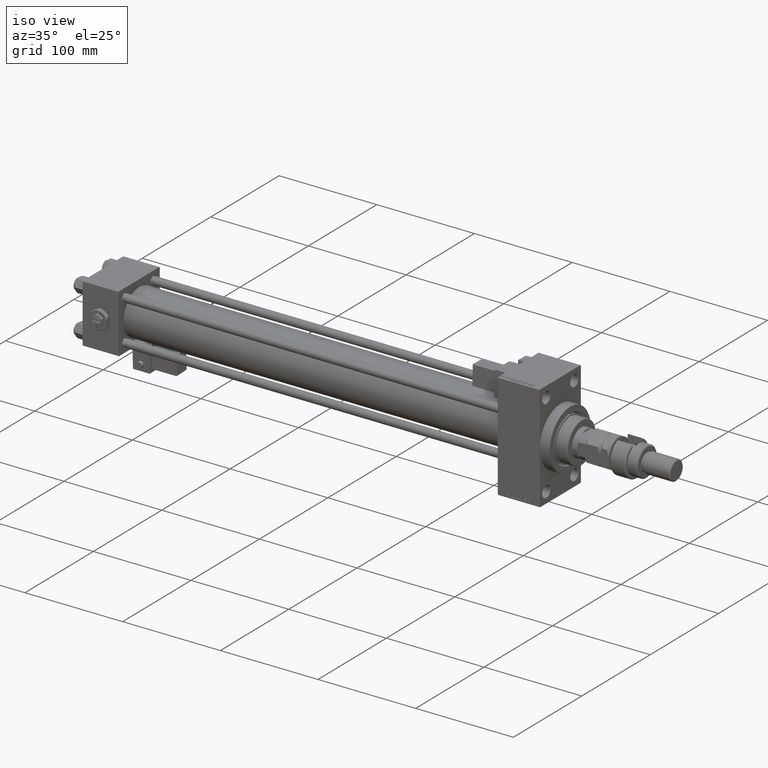
[diagram: clean part render]
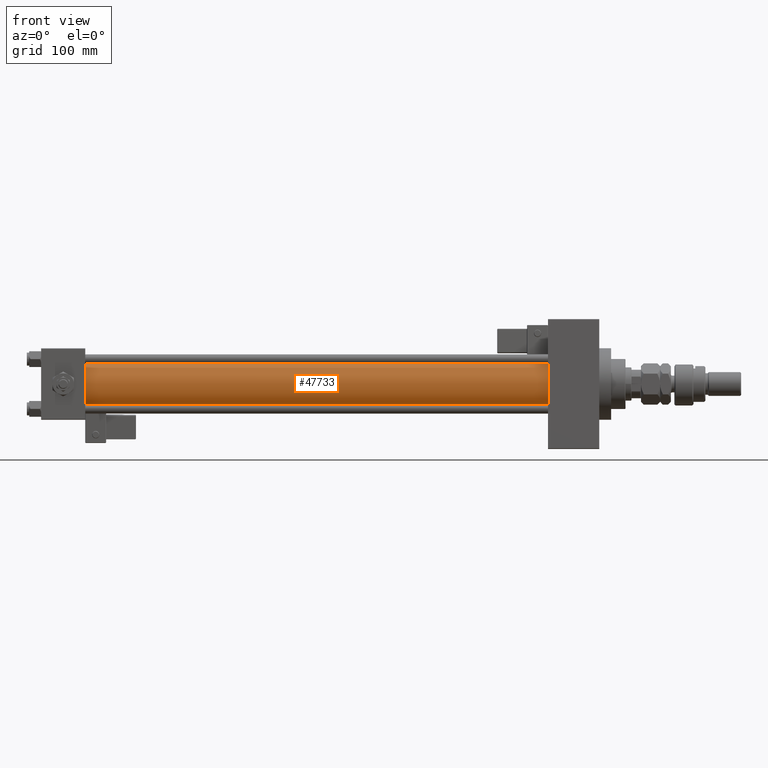
[diagram: tour spotlight — one face highlighted and labeled with its STEP entity id]
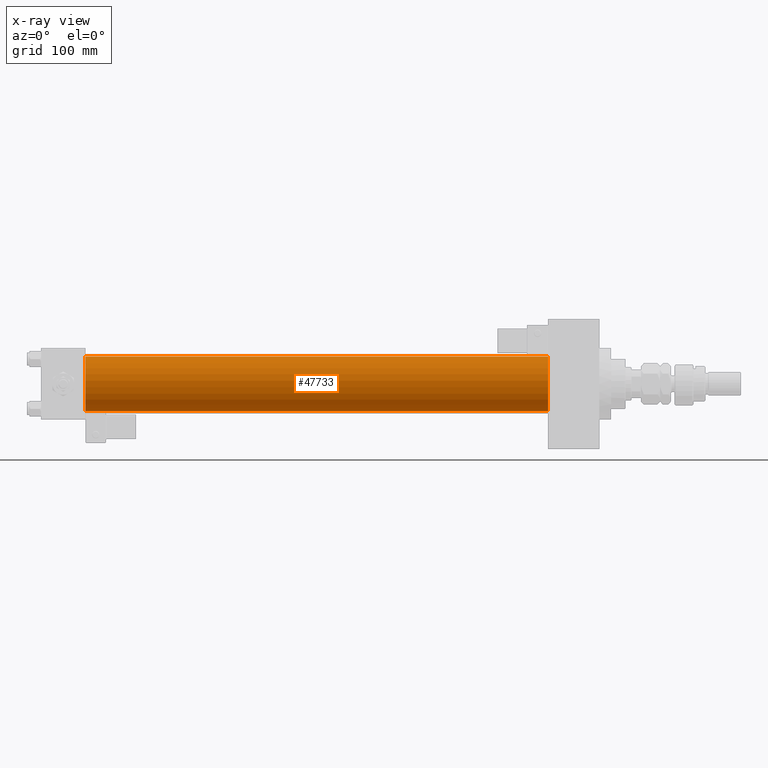
[diagram: x-ray of the same camera — body ghosted, this tour face saturated]
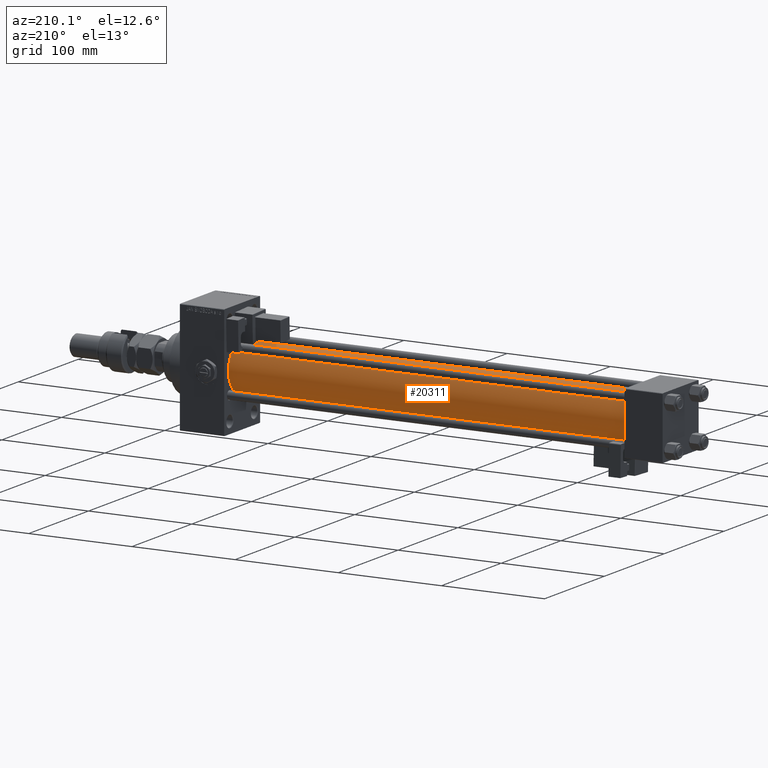
[diagram: tour spotlight — one face highlighted and labeled with its STEP entity id]
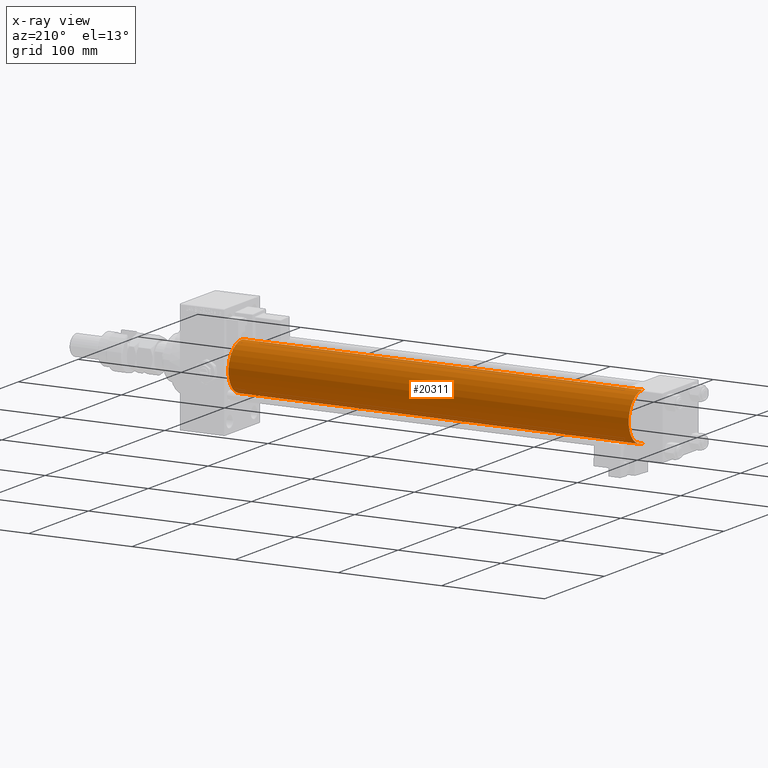
[diagram: x-ray of the same camera — body ghosted, this tour face saturated]
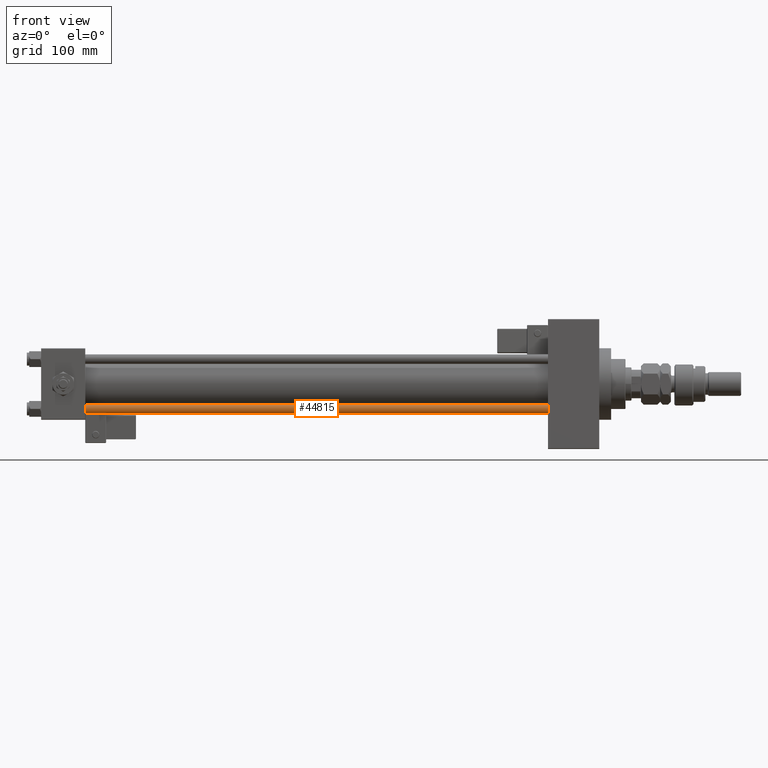
[diagram: tour spotlight — one face highlighted and labeled with its STEP entity id]
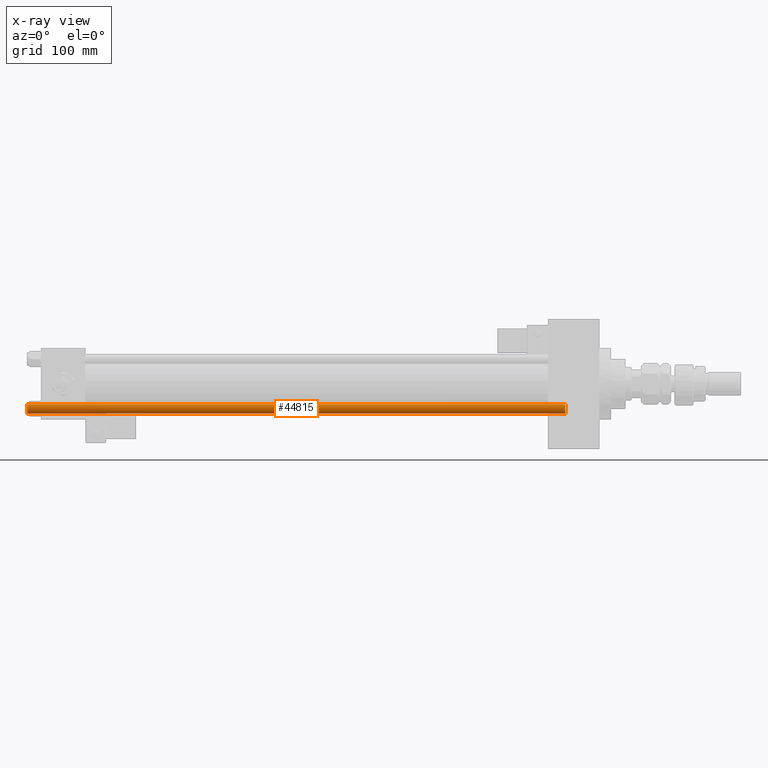
[diagram: x-ray of the same camera — body ghosted, this tour face saturated]
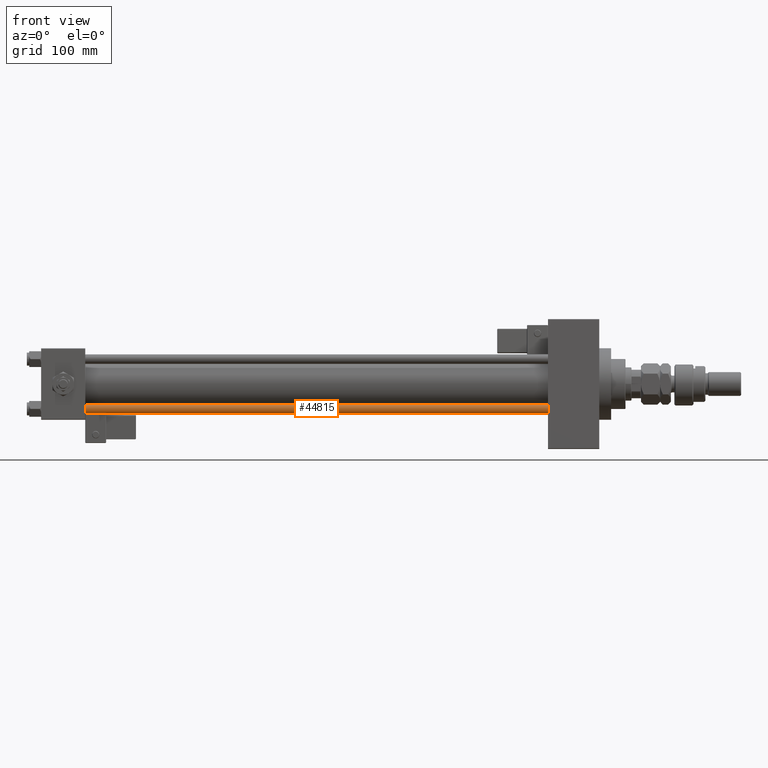
[diagram: tour spotlight — one face highlighted and labeled with its STEP entity id]
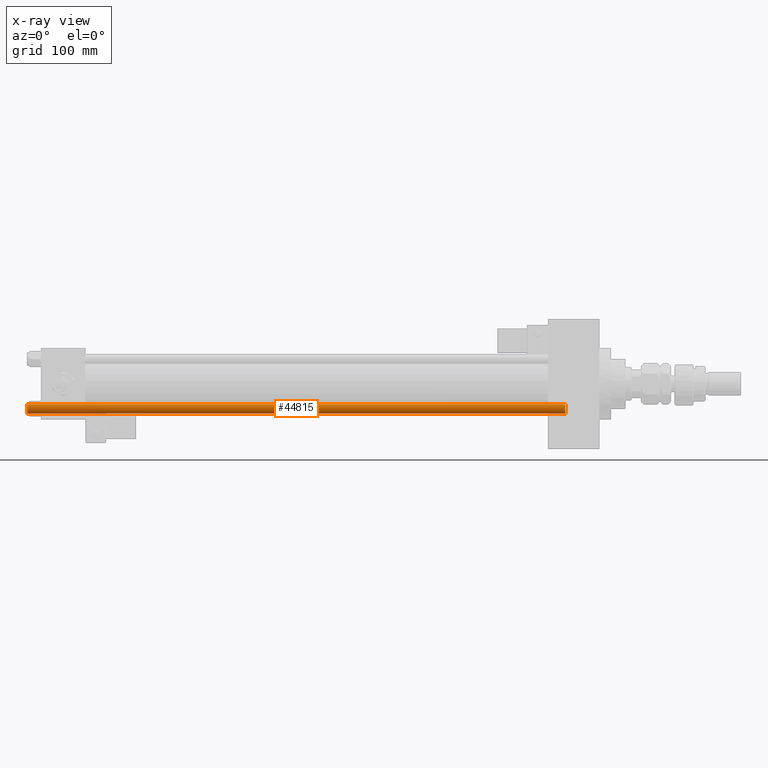
[diagram: x-ray of the same camera — body ghosted, this tour face saturated]
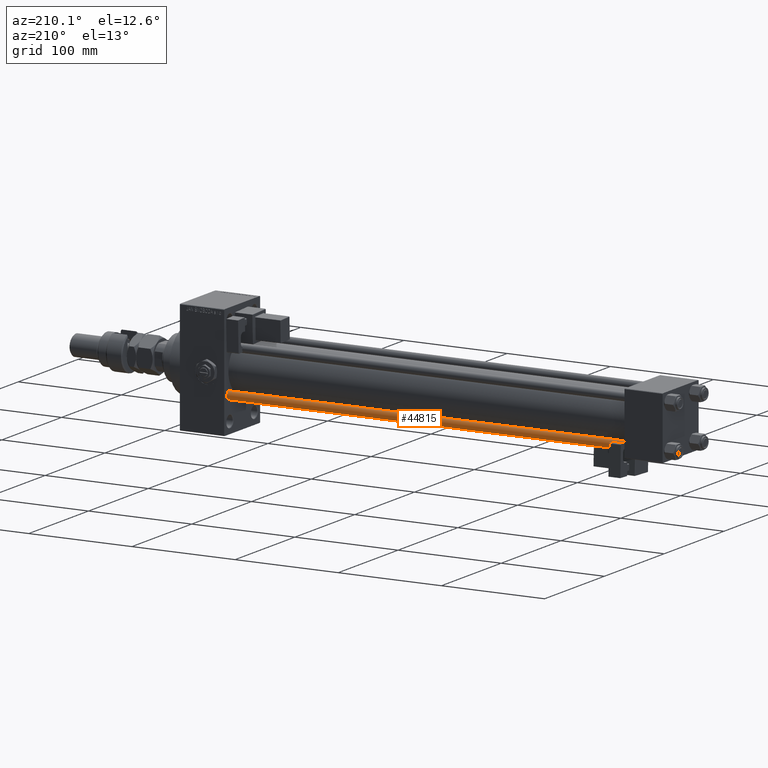
[diagram: tour spotlight — one face highlighted and labeled with its STEP entity id]
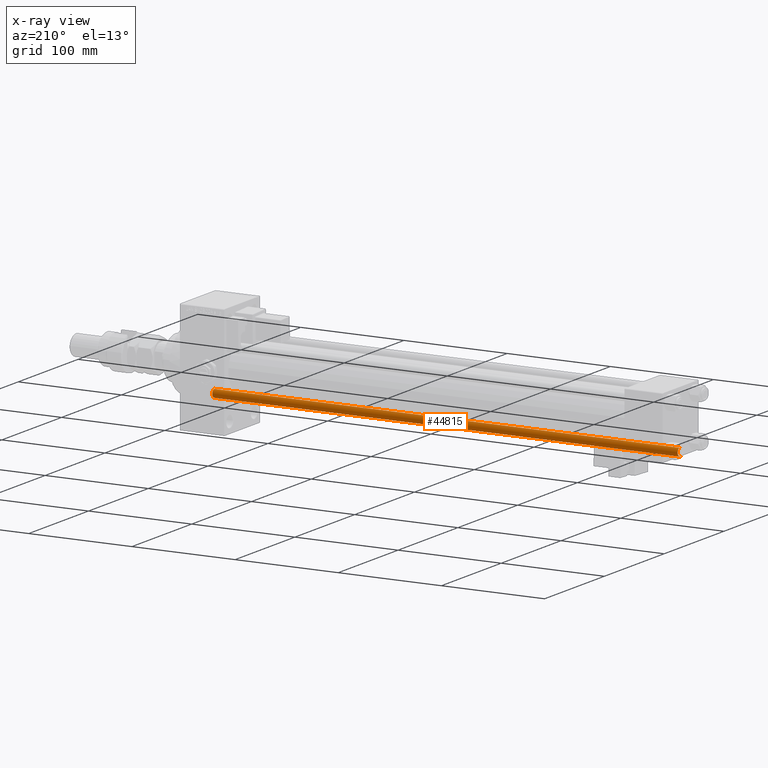
[diagram: x-ray of the same camera — body ghosted, this tour face saturated]
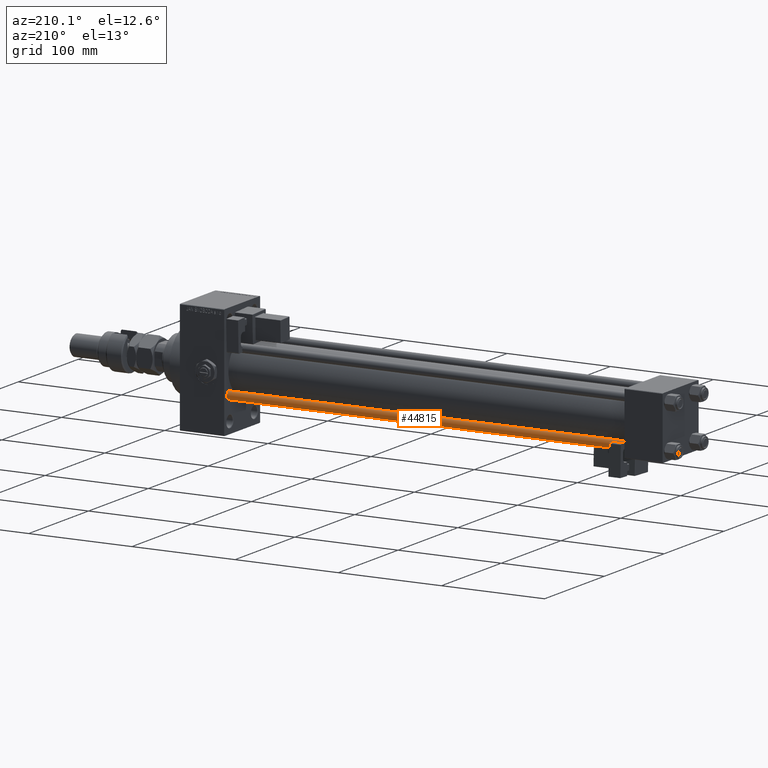
[diagram: tour spotlight — one face highlighted and labeled with its STEP entity id]
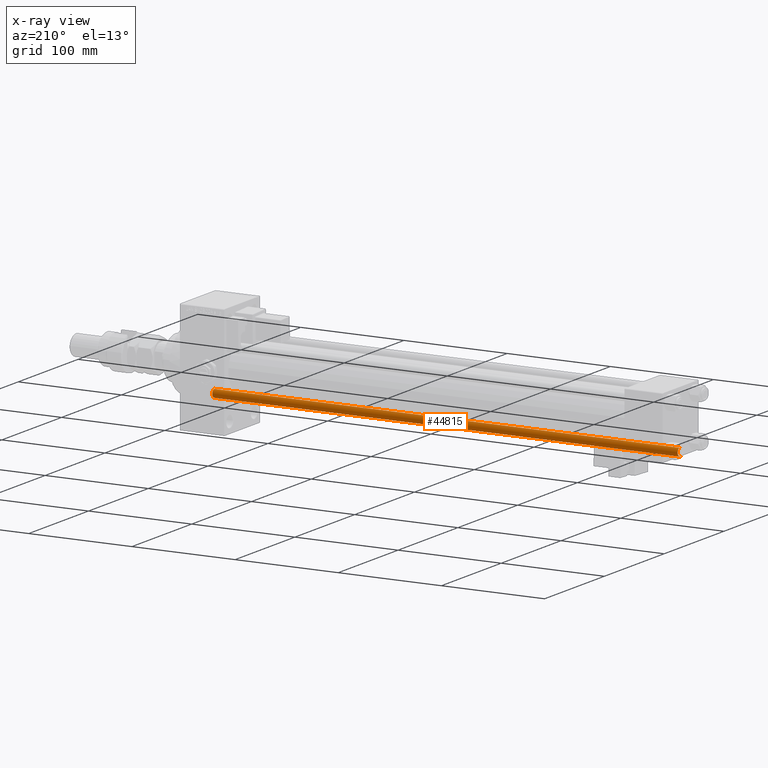
[diagram: x-ray of the same camera — body ghosted, this tour face saturated]
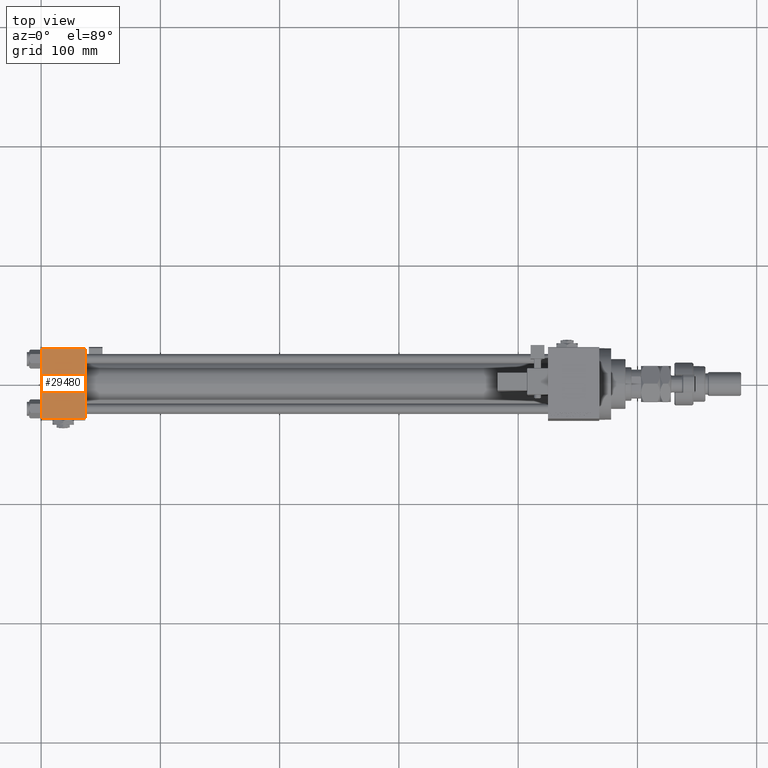
[diagram: tour spotlight — one face highlighted and labeled with its STEP entity id]
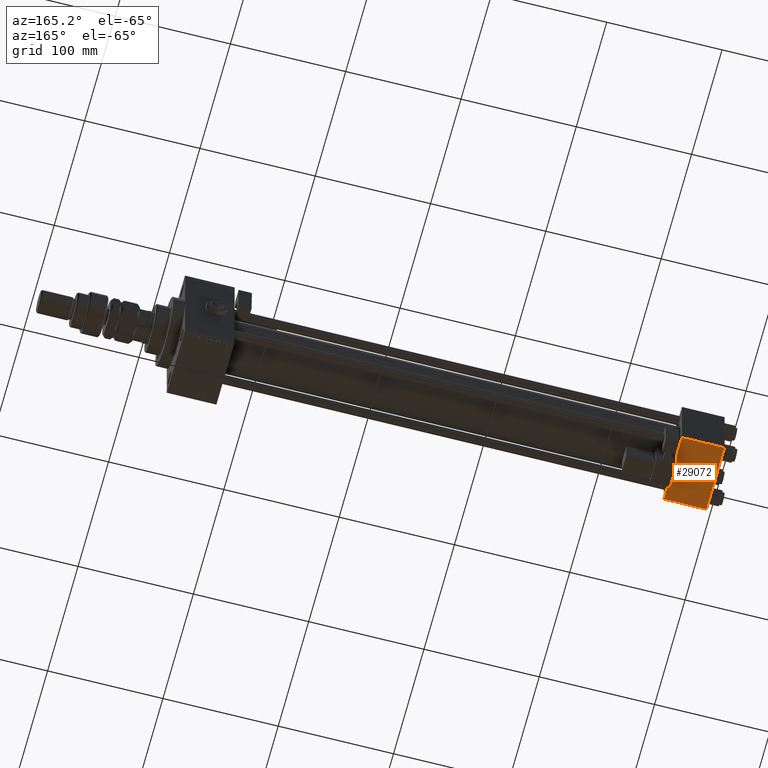
[diagram: tour spotlight — one face highlighted and labeled with its STEP entity id]
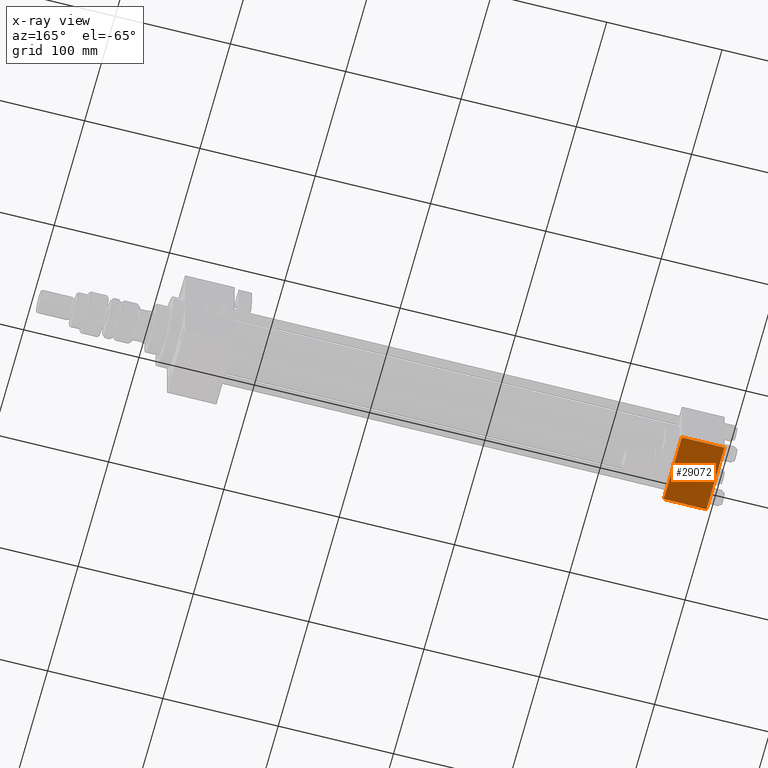
[diagram: x-ray of the same camera — body ghosted, this tour face saturated]
A machine part: a face-by-face anatomy tour. The part has 1438 B-rep faces; the first image is the clean iso view, then the 8 largest visible faces are spotlighted one at a time (largest first), each with its STEP entity span.

Face 1 — front view, entity #47733. An x-ray twin of the same camera follows (body ghosted, this face saturated) — the face is partly hidden behind the body. In plain terms, the highlighted cylindrical surface (edge-blend (fillet) strip) has radius 23 mm, axis along (-1, -0, -0).
Definition (entity closure, byte-faithful):
#347 = CIRCLE ( 'NONE', #33502, 23.00000000000000000 ) ;
#4824 = EDGE_CURVE ( 'NONE', #7737, #27713, #35434, .T. ) ;
#6245 = CARTESIAN_POINT ( 'NONE',  ( 425.0000000000000000, -2.602085213965210642E-15, 0.000000000000000000 ) ) ;
#7441 = VERTEX_POINT ( 'NONE', #19532 ) ;
#7737 = VERTEX_POINT ( 'NONE', #49221 ) ;
#10631 = ORIENTED_EDGE ( 'NONE', *, *, #31828, .F. ) ;
#11826 = DIRECTION ( 'NONE',  ( 0.000000000000000000, 0.000000000000000000, 1.000000000000000000 ) ) ;
#13347 = VERTEX_POINT ( 'NONE', #53543 ) ;
#18666 = CARTESIAN_POINT ( 'NONE',  ( 36.99999999999997868, 2.146024240737012665E-16, -23.00000000000000000 ) ) ;
#19532 = CARTESIAN_POINT ( 'NONE',  ( 425.0000000000000000, -2.602085213965210642E-15, 23.00000000000000000 ) ) ;
#21330 = EDGE_CURVE ( 'NONE', #13347, #27713, #31698, .T. ) ;
#22025 = CARTESIAN_POINT ( 'NONE',  ( 425.0000000000000000, -2.602085213965210642E-15, 23.00000000000000000 ) ) ;
#22388 = DIRECTION ( 'NONE',  ( 1.000000000000000000, 0.000000000000000000, 0.000000000000000000 ) ) ;
#23204 = ORIENTED_EDGE ( 'NONE', *, *, #45468, .T. ) ;
#24969 = CYLINDRICAL_SURFACE ( 'NONE', #40255, 23.00000000000000000 ) ;
#26690 = CARTESIAN_POINT ( 'NONE',  ( 425.0000000000000000, 2.146024240737012665E-16, -23.00000000000000000 ) ) ;
#27713 = VERTEX_POINT ( 'NONE', #18666 ) ;
#28505 = CARTESIAN_POINT ( 'NONE',  ( 425.0000000000000000, -2.602085213965210642E-15, 0.000000000000000000 ) ) ;
#28579 = DIRECTION ( 'NONE',  ( 1.000000000000000000, -0.000000000000000000, 0.000000000000000000 ) ) ;
#30101 = ORIENTED_EDGE ( 'NONE', *, *, #21330, .T. ) ;
#31698 = CIRCLE ( 'NONE', #53528, 23.00000000000000000 ) ;
#31828 = EDGE_CURVE ( 'NONE', #7441, #7737, #347, .T. ) ;
#33502 = AXIS2_PLACEMENT_3D ( 'NONE', #6245, #22388, #51907 ) ;
#35434 = LINE ( 'NONE', #26690, #51329 ) ;
#39507 = LINE ( 'NONE', #22025, #49673 ) ;
#40255 = AXIS2_PLACEMENT_3D ( 'NONE', #28505, #52652, #11826 ) ;
#44400 = ORIENTED_EDGE ( 'NONE', *, *, #4824, .F. ) ;
#45468 = EDGE_CURVE ( 'NONE', #7441, #13347, #39507, .T. ) ;
#45920 = EDGE_LOOP ( 'NONE', ( #44400, #10631, #23204, #30101 ) ) ;
#47733 = ADVANCED_FACE ( 'NONE', ( #48563 ), #24969, .T. ) ;
#47981 = DIRECTION ( 'NONE',  ( -1.000000000000000000, -0.000000000000000000, -0.000000000000000000 ) ) ;
#48289 = DIRECTION ( 'NONE',  ( -1.000000000000000000, -0.000000000000000000, -0.000000000000000000 ) ) ;
#48563 = FACE_OUTER_BOUND ( 'NONE', #45920, .T. ) ;
#49115 = CARTESIAN_POINT ( 'NONE',  ( 36.99999999999997868, -2.602085213965210642E-15, 0.000000000000000000 ) ) ;
#49221 = CARTESIAN_POINT ( 'NONE',  ( 425.0000000000000000, 2.146024240737012665E-16, -23.00000000000000000 ) ) ;
#49673 = VECTOR ( 'NONE', #47981, 1000.000000000000000 ) ;
#51329 = VECTOR ( 'NONE', #48289, 1000.000000000000000 ) ;
#51907 = DIRECTION ( 'NONE',  ( 0.000000000000000000, 0.000000000000000000, -1.000000000000000000 ) ) ;
#52652 = DIRECTION ( 'NONE',  ( -1.000000000000000000, -0.000000000000000000, -0.000000000000000000 ) ) ;
#53528 = AXIS2_PLACEMENT_3D ( 'NONE', #49115, #28579, #53742 ) ;
#53543 = CARTESIAN_POINT ( 'NONE',  ( 36.99999999999997868, -2.602085213965210642E-15, 23.00000000000000000 ) ) ;
#53742 = DIRECTION ( 'NONE',  ( 0.000000000000000000, 0.000000000000000000, 1.000000000000000000 ) ) ;

Face 2 — auxiliary view, entity #20311. An x-ray twin of the same camera follows (body ghosted, this face saturated) — the face is partly hidden behind the body. In plain terms, the highlighted cylindrical surface (edge-blend (fillet) strip) has radius 23 mm, axis along (-1, -0, -0).
Definition (entity closure, byte-faithful):
#4008 = CIRCLE ( 'NONE', #16078, 23.00000000000000000 ) ;
#4824 = EDGE_CURVE ( 'NONE', #7737, #27713, #35434, .T. ) ;
#5336 = DIRECTION ( 'NONE',  ( 1.000000000000000000, 0.000000000000000000, 0.000000000000000000 ) ) ;
#7441 = VERTEX_POINT ( 'NONE', #19532 ) ;
#7737 = VERTEX_POINT ( 'NONE', #49221 ) ;
#10232 = DIRECTION ( 'NONE',  ( 0.000000000000000000, 0.000000000000000000, -1.000000000000000000 ) ) ;
#12498 = ORIENTED_EDGE ( 'NONE', *, *, #47061, .T. ) ;
#13347 = VERTEX_POINT ( 'NONE', #53543 ) ;
#13920 = CIRCLE ( 'NONE', #26997, 23.00000000000000000 ) ;
#14507 = CARTESIAN_POINT ( 'NONE',  ( 36.99999999999997868, -2.602085213965210642E-15, 0.000000000000000000 ) ) ;
#14616 = ORIENTED_EDGE ( 'NONE', *, *, #45468, .F. ) ;
#14771 = DIRECTION ( 'NONE',  ( 0.000000000000000000, 0.000000000000000000, 1.000000000000000000 ) ) ;
#16078 = AXIS2_PLACEMENT_3D ( 'NONE', #22561, #5336, #10232 ) ;
#18666 = CARTESIAN_POINT ( 'NONE',  ( 36.99999999999997868, 2.146024240737012665E-16, -23.00000000000000000 ) ) ;
#19532 = CARTESIAN_POINT ( 'NONE',  ( 425.0000000000000000, -2.602085213965210642E-15, 23.00000000000000000 ) ) ;
#20311 = ADVANCED_FACE ( 'NONE', ( #26947 ), #51849, .T. ) ;
#22025 = CARTESIAN_POINT ( 'NONE',  ( 425.0000000000000000, -2.602085213965210642E-15, 23.00000000000000000 ) ) ;
#22561 = CARTESIAN_POINT ( 'NONE',  ( 425.0000000000000000, -2.602085213965210642E-15, 0.000000000000000000 ) ) ;
#26690 = CARTESIAN_POINT ( 'NONE',  ( 425.0000000000000000, 2.146024240737012665E-16, -23.00000000000000000 ) ) ;
#26947 = FACE_OUTER_BOUND ( 'NONE', #40520, .T. ) ;
#26997 = AXIS2_PLACEMENT_3D ( 'NONE', #14507, #40478, #14771 ) ;
#27713 = VERTEX_POINT ( 'NONE', #18666 ) ;
#35434 = LINE ( 'NONE', #26690, #51329 ) ;
#37000 = EDGE_CURVE ( 'NONE', #7737, #7441, #4008, .T. ) ;
#39507 = LINE ( 'NONE', #22025, #49673 ) ;
#40343 = DIRECTION ( 'NONE',  ( -1.000000000000000000, -0.000000000000000000, -0.000000000000000000 ) ) ;
#40478 = DIRECTION ( 'NONE',  ( 1.000000000000000000, -0.000000000000000000, 0.000000000000000000 ) ) ;
#40520 = EDGE_LOOP ( 'NONE', ( #42137, #43947, #12498, #14616 ) ) ;
#42137 = ORIENTED_EDGE ( 'NONE', *, *, #37000, .F. ) ;
#43947 = ORIENTED_EDGE ( 'NONE', *, *, #4824, .T. ) ;
#44180 = DIRECTION ( 'NONE',  ( 0.000000000000000000, 0.000000000000000000, 1.000000000000000000 ) ) ;
#44755 = AXIS2_PLACEMENT_3D ( 'NONE', #52373, #40343, #44180 ) ;
#45468 = EDGE_CURVE ( 'NONE', #7441, #13347, #39507, .T. ) ;
#47061 = EDGE_CURVE ( 'NONE', #27713, #13347, #13920, .T. ) ;
#47981 = DIRECTION ( 'NONE',  ( -1.000000000000000000, -0.000000000000000000, -0.000000000000000000 ) ) ;
#48289 = DIRECTION ( 'NONE',  ( -1.000000000000000000, -0.000000000000000000, -0.000000000000000000 ) ) ;
#49221 = CARTESIAN_POINT ( 'NONE',  ( 425.0000000000000000, 2.146024240737012665E-16, -23.00000000000000000 ) ) ;
#49673 = VECTOR ( 'NONE', #47981, 1000.000000000000000 ) ;
#51329 = VECTOR ( 'NONE', #48289, 1000.000000000000000 ) ;
#51849 = CYLINDRICAL_SURFACE ( 'NONE', #44755, 23.00000000000000000 ) ;
#52373 = CARTESIAN_POINT ( 'NONE',  ( 425.0000000000000000, -2.602085213965210642E-15, 0.000000000000000000 ) ) ;
#53543 = CARTESIAN_POINT ( 'NONE',  ( 36.99999999999997868, -2.602085213965210642E-15, 23.00000000000000000 ) ) ;

Face 3 — front view, entity #44815. An x-ray twin of the same camera follows (body ghosted, this face saturated) — the face is partly hidden behind the body. In plain terms, the highlighted cylindrical surface (edge-blend (fillet) strip) has radius 4 mm, axis along (1, 0, 0).
Definition (entity closure, byte-faithful):
#667 = LINE ( 'NONE', #4753, #43776 ) ;
#925 = DIRECTION ( 'NONE',  ( -0.000000000000000000, -0.000000000000000000, -1.000000000000000000 ) ) ;
#1940 = AXIS2_PLACEMENT_3D ( 'NONE', #48146, #52510, #10135 ) ;
#4753 = CARTESIAN_POINT ( 'NONE',  ( 4.000000000000000000, 4.898587196589412829E-16, 452.0000000000000000 ) ) ;
#5639 = VECTOR ( 'NONE', #31083, 1000.000000000000000 ) ;
#5764 = ORIENTED_EDGE ( 'NONE', *, *, #52342, .T. ) ;
#7817 = CARTESIAN_POINT ( 'NONE',  ( -4.000000000000000000, 0.000000000000000000, 451.5000000000000000 ) ) ;
#9198 = EDGE_LOOP ( 'NONE', ( #5764, #37309, #11671, #51895 ) ) ;
#10135 = DIRECTION ( 'NONE',  ( 1.000000000000000000, 0.000000000000000000, 0.000000000000000000 ) ) ;
#11671 = ORIENTED_EDGE ( 'NONE', *, *, #41633, .T. ) ;
#11949 = VERTEX_POINT ( 'NONE', #30919 ) ;
#13437 = CARTESIAN_POINT ( 'NONE',  ( 4.000000000000000000, 4.898587196589412829E-16, 451.5000000000000000 ) ) ;
#17903 = EDGE_CURVE ( 'NONE', #52944, #11949, #667, .T. ) ;
#18586 = DIRECTION ( 'NONE',  ( -1.000000000000000000, 0.000000000000000000, 0.000000000000000000 ) ) ;
#21291 = DIRECTION ( 'NONE',  ( 1.000000000000000000, 0.000000000000000000, 0.000000000000000000 ) ) ;
#21317 = VERTEX_POINT ( 'NONE', #7817 ) ;
#22296 = CARTESIAN_POINT ( 'NONE',  ( 0.000000000000000000, 0.000000000000000000, 0.5000000000000004441 ) ) ;
#25395 = DIRECTION ( 'NONE',  ( -0.000000000000000000, -0.000000000000000000, 1.000000000000000000 ) ) ;
#27320 = CYLINDRICAL_SURFACE ( 'NONE', #47891, 4.000000000000000000 ) ;
#30919 = CARTESIAN_POINT ( 'NONE',  ( 4.000000000000000000, 4.898587196589412829E-16, 0.5000000000000004441 ) ) ;
#31083 = DIRECTION ( 'NONE',  ( -0.000000000000000000, -0.000000000000000000, -1.000000000000000000 ) ) ;
#31689 = CARTESIAN_POINT ( 'NONE',  ( 0.000000000000000000, 0.000000000000000000, 452.0000000000000000 ) ) ;
#32236 = CARTESIAN_POINT ( 'NONE',  ( -4.000000000000000000, 0.000000000000000000, 0.5000000000000004441 ) ) ;
#34303 = EDGE_CURVE ( 'NONE', #21317, #50155, #35467, .T. ) ;
#35467 = LINE ( 'NONE', #51887, #5639 ) ;
#37309 = ORIENTED_EDGE ( 'NONE', *, *, #17903, .T. ) ;
#39854 = CIRCLE ( 'NONE', #46832, 4.000000000000000000 ) ;
#41633 = EDGE_CURVE ( 'NONE', #11949, #50155, #39854, .T. ) ;
#43013 = CIRCLE ( 'NONE', #1940, 4.000000000000000000 ) ;
#43480 = DIRECTION ( 'NONE',  ( -0.000000000000000000, -0.000000000000000000, -1.000000000000000000 ) ) ;
#43776 = VECTOR ( 'NONE', #925, 1000.000000000000000 ) ;
#44815 = ADVANCED_FACE ( 'NONE', ( #48388 ), #27320, .T. ) ;
#46832 = AXIS2_PLACEMENT_3D ( 'NONE', #22296, #25395, #21291 ) ;
#47891 = AXIS2_PLACEMENT_3D ( 'NONE', #31689, #43480, #18586 ) ;
#48146 = CARTESIAN_POINT ( 'NONE',  ( 0.000000000000000000, 0.000000000000000000, 451.5000000000000000 ) ) ;
#48388 = FACE_OUTER_BOUND ( 'NONE', #9198, .T. ) ;
#50155 = VERTEX_POINT ( 'NONE', #32236 ) ;
#51887 = CARTESIAN_POINT ( 'NONE',  ( -4.000000000000000000, 0.000000000000000000, 452.0000000000000000 ) ) ;
#51895 = ORIENTED_EDGE ( 'NONE', *, *, #34303, .F. ) ;
#52342 = EDGE_CURVE ( 'NONE', #21317, #52944, #43013, .T. ) ;
#52510 = DIRECTION ( 'NONE',  ( 0.000000000000000000, 0.000000000000000000, -1.000000000000000000 ) ) ;
#52944 = VERTEX_POINT ( 'NONE', #13437 ) ;

Face 4 — front view, entity #44815. An x-ray twin of the same camera follows (body ghosted, this face saturated) — the face is partly hidden behind the body. In plain terms, the highlighted cylindrical surface (edge-blend (fillet) strip) has radius 4 mm, axis along (-1, 0, 0).
Definition (entity closure, byte-faithful):
#667 = LINE ( 'NONE', #4753, #43776 ) ;
#925 = DIRECTION ( 'NONE',  ( -0.000000000000000000, -0.000000000000000000, -1.000000000000000000 ) ) ;
#1940 = AXIS2_PLACEMENT_3D ( 'NONE', #48146, #52510, #10135 ) ;
#4753 = CARTESIAN_POINT ( 'NONE',  ( 4.000000000000000000, 4.898587196589412829E-16, 452.0000000000000000 ) ) ;
#5639 = VECTOR ( 'NONE', #31083, 1000.000000000000000 ) ;
#5764 = ORIENTED_EDGE ( 'NONE', *, *, #52342, .T. ) ;
#7817 = CARTESIAN_POINT ( 'NONE',  ( -4.000000000000000000, 0.000000000000000000, 451.5000000000000000 ) ) ;
#9198 = EDGE_LOOP ( 'NONE', ( #5764, #37309, #11671, #51895 ) ) ;
#10135 = DIRECTION ( 'NONE',  ( 1.000000000000000000, 0.000000000000000000, 0.000000000000000000 ) ) ;
#11671 = ORIENTED_EDGE ( 'NONE', *, *, #41633, .T. ) ;
#11949 = VERTEX_POINT ( 'NONE', #30919 ) ;
#13437 = CARTESIAN_POINT ( 'NONE',  ( 4.000000000000000000, 4.898587196589412829E-16, 451.5000000000000000 ) ) ;
#17903 = EDGE_CURVE ( 'NONE', #52944, #11949, #667, .T. ) ;
#18586 = DIRECTION ( 'NONE',  ( -1.000000000000000000, 0.000000000000000000, 0.000000000000000000 ) ) ;
#21291 = DIRECTION ( 'NONE',  ( 1.000000000000000000, 0.000000000000000000, 0.000000000000000000 ) ) ;
#21317 = VERTEX_POINT ( 'NONE', #7817 ) ;
#22296 = CARTESIAN_POINT ( 'NONE',  ( 0.000000000000000000, 0.000000000000000000, 0.5000000000000004441 ) ) ;
#25395 = DIRECTION ( 'NONE',  ( -0.000000000000000000, -0.000000000000000000, 1.000000000000000000 ) ) ;
#27320 = CYLINDRICAL_SURFACE ( 'NONE', #47891, 4.000000000000000000 ) ;
#30919 = CARTESIAN_POINT ( 'NONE',  ( 4.000000000000000000, 4.898587196589412829E-16, 0.5000000000000004441 ) ) ;
#31083 = DIRECTION ( 'NONE',  ( -0.000000000000000000, -0.000000000000000000, -1.000000000000000000 ) ) ;
#31689 = CARTESIAN_POINT ( 'NONE',  ( 0.000000000000000000, 0.000000000000000000, 452.0000000000000000 ) ) ;
#32236 = CARTESIAN_POINT ( 'NONE',  ( -4.000000000000000000, 0.000000000000000000, 0.5000000000000004441 ) ) ;
#34303 = EDGE_CURVE ( 'NONE', #21317, #50155, #35467, .T. ) ;
#35467 = LINE ( 'NONE', #51887, #5639 ) ;
#37309 = ORIENTED_EDGE ( 'NONE', *, *, #17903, .T. ) ;
#39854 = CIRCLE ( 'NONE', #46832, 4.000000000000000000 ) ;
#41633 = EDGE_CURVE ( 'NONE', #11949, #50155, #39854, .T. ) ;
#43013 = CIRCLE ( 'NONE', #1940, 4.000000000000000000 ) ;
#43480 = DIRECTION ( 'NONE',  ( -0.000000000000000000, -0.000000000000000000, -1.000000000000000000 ) ) ;
#43776 = VECTOR ( 'NONE', #925, 1000.000000000000000 ) ;
#44815 = ADVANCED_FACE ( 'NONE', ( #48388 ), #27320, .T. ) ;
#46832 = AXIS2_PLACEMENT_3D ( 'NONE', #22296, #25395, #21291 ) ;
#47891 = AXIS2_PLACEMENT_3D ( 'NONE', #31689, #43480, #18586 ) ;
#48146 = CARTESIAN_POINT ( 'NONE',  ( 0.000000000000000000, 0.000000000000000000, 451.5000000000000000 ) ) ;
#48388 = FACE_OUTER_BOUND ( 'NONE', #9198, .T. ) ;
#50155 = VERTEX_POINT ( 'NONE', #32236 ) ;
#51887 = CARTESIAN_POINT ( 'NONE',  ( -4.000000000000000000, 0.000000000000000000, 452.0000000000000000 ) ) ;
#51895 = ORIENTED_EDGE ( 'NONE', *, *, #34303, .F. ) ;
#52342 = EDGE_CURVE ( 'NONE', #21317, #52944, #43013, .T. ) ;
#52510 = DIRECTION ( 'NONE',  ( 0.000000000000000000, 0.000000000000000000, -1.000000000000000000 ) ) ;
#52944 = VERTEX_POINT ( 'NONE', #13437 ) ;

Face 5 — auxiliary view, entity #44815. An x-ray twin of the same camera follows (body ghosted, this face saturated) — the face is partly hidden behind the body. In plain terms, the highlighted cylindrical surface (edge-blend (fillet) strip) has radius 4 mm, axis along (-1, -0, 0).
Definition (entity closure, byte-faithful):
#667 = LINE ( 'NONE', #4753, #43776 ) ;
#925 = DIRECTION ( 'NONE',  ( -0.000000000000000000, -0.000000000000000000, -1.000000000000000000 ) ) ;
#1940 = AXIS2_PLACEMENT_3D ( 'NONE', #48146, #52510, #10135 ) ;
#4753 = CARTESIAN_POINT ( 'NONE',  ( 4.000000000000000000, 4.898587196589412829E-16, 452.0000000000000000 ) ) ;
#5639 = VECTOR ( 'NONE', #31083, 1000.000000000000000 ) ;
#5764 = ORIENTED_EDGE ( 'NONE', *, *, #52342, .T. ) ;
#7817 = CARTESIAN_POINT ( 'NONE',  ( -4.000000000000000000, 0.000000000000000000, 451.5000000000000000 ) ) ;
#9198 = EDGE_LOOP ( 'NONE', ( #5764, #37309, #11671, #51895 ) ) ;
#10135 = DIRECTION ( 'NONE',  ( 1.000000000000000000, 0.000000000000000000, 0.000000000000000000 ) ) ;
#11671 = ORIENTED_EDGE ( 'NONE', *, *, #41633, .T. ) ;
#11949 = VERTEX_POINT ( 'NONE', #30919 ) ;
#13437 = CARTESIAN_POINT ( 'NONE',  ( 4.000000000000000000, 4.898587196589412829E-16, 451.5000000000000000 ) ) ;
#17903 = EDGE_CURVE ( 'NONE', #52944, #11949, #667, .T. ) ;
#18586 = DIRECTION ( 'NONE',  ( -1.000000000000000000, 0.000000000000000000, 0.000000000000000000 ) ) ;
#21291 = DIRECTION ( 'NONE',  ( 1.000000000000000000, 0.000000000000000000, 0.000000000000000000 ) ) ;
#21317 = VERTEX_POINT ( 'NONE', #7817 ) ;
#22296 = CARTESIAN_POINT ( 'NONE',  ( 0.000000000000000000, 0.000000000000000000, 0.5000000000000004441 ) ) ;
#25395 = DIRECTION ( 'NONE',  ( -0.000000000000000000, -0.000000000000000000, 1.000000000000000000 ) ) ;
#27320 = CYLINDRICAL_SURFACE ( 'NONE', #47891, 4.000000000000000000 ) ;
#30919 = CARTESIAN_POINT ( 'NONE',  ( 4.000000000000000000, 4.898587196589412829E-16, 0.5000000000000004441 ) ) ;
#31083 = DIRECTION ( 'NONE',  ( -0.000000000000000000, -0.000000000000000000, -1.000000000000000000 ) ) ;
#31689 = CARTESIAN_POINT ( 'NONE',  ( 0.000000000000000000, 0.000000000000000000, 452.0000000000000000 ) ) ;
#32236 = CARTESIAN_POINT ( 'NONE',  ( -4.000000000000000000, 0.000000000000000000, 0.5000000000000004441 ) ) ;
#34303 = EDGE_CURVE ( 'NONE', #21317, #50155, #35467, .T. ) ;
#35467 = LINE ( 'NONE', #51887, #5639 ) ;
#37309 = ORIENTED_EDGE ( 'NONE', *, *, #17903, .T. ) ;
#39854 = CIRCLE ( 'NONE', #46832, 4.000000000000000000 ) ;
#41633 = EDGE_CURVE ( 'NONE', #11949, #50155, #39854, .T. ) ;
#43013 = CIRCLE ( 'NONE', #1940, 4.000000000000000000 ) ;
#43480 = DIRECTION ( 'NONE',  ( -0.000000000000000000, -0.000000000000000000, -1.000000000000000000 ) ) ;
#43776 = VECTOR ( 'NONE', #925, 1000.000000000000000 ) ;
#44815 = ADVANCED_FACE ( 'NONE', ( #48388 ), #27320, .T. ) ;
#46832 = AXIS2_PLACEMENT_3D ( 'NONE', #22296, #25395, #21291 ) ;
#47891 = AXIS2_PLACEMENT_3D ( 'NONE', #31689, #43480, #18586 ) ;
#48146 = CARTESIAN_POINT ( 'NONE',  ( 0.000000000000000000, 0.000000000000000000, 451.5000000000000000 ) ) ;
#48388 = FACE_OUTER_BOUND ( 'NONE', #9198, .T. ) ;
#50155 = VERTEX_POINT ( 'NONE', #32236 ) ;
#51887 = CARTESIAN_POINT ( 'NONE',  ( -4.000000000000000000, 0.000000000000000000, 452.0000000000000000 ) ) ;
#51895 = ORIENTED_EDGE ( 'NONE', *, *, #34303, .F. ) ;
#52342 = EDGE_CURVE ( 'NONE', #21317, #52944, #43013, .T. ) ;
#52510 = DIRECTION ( 'NONE',  ( 0.000000000000000000, 0.000000000000000000, -1.000000000000000000 ) ) ;
#52944 = VERTEX_POINT ( 'NONE', #13437 ) ;

Face 6 — auxiliary view, entity #44815. An x-ray twin of the same camera follows (body ghosted, this face saturated) — the face is partly hidden behind the body. In plain terms, the highlighted cylindrical surface (edge-blend (fillet) strip) has radius 4 mm, axis along (1, -0, 0).
Definition (entity closure, byte-faithful):
#667 = LINE ( 'NONE', #4753, #43776 ) ;
#925 = DIRECTION ( 'NONE',  ( -0.000000000000000000, -0.000000000000000000, -1.000000000000000000 ) ) ;
#1940 = AXIS2_PLACEMENT_3D ( 'NONE', #48146, #52510, #10135 ) ;
#4753 = CARTESIAN_POINT ( 'NONE',  ( 4.000000000000000000, 4.898587196589412829E-16, 452.0000000000000000 ) ) ;
#5639 = VECTOR ( 'NONE', #31083, 1000.000000000000000 ) ;
#5764 = ORIENTED_EDGE ( 'NONE', *, *, #52342, .T. ) ;
#7817 = CARTESIAN_POINT ( 'NONE',  ( -4.000000000000000000, 0.000000000000000000, 451.5000000000000000 ) ) ;
#9198 = EDGE_LOOP ( 'NONE', ( #5764, #37309, #11671, #51895 ) ) ;
#10135 = DIRECTION ( 'NONE',  ( 1.000000000000000000, 0.000000000000000000, 0.000000000000000000 ) ) ;
#11671 = ORIENTED_EDGE ( 'NONE', *, *, #41633, .T. ) ;
#11949 = VERTEX_POINT ( 'NONE', #30919 ) ;
#13437 = CARTESIAN_POINT ( 'NONE',  ( 4.000000000000000000, 4.898587196589412829E-16, 451.5000000000000000 ) ) ;
#17903 = EDGE_CURVE ( 'NONE', #52944, #11949, #667, .T. ) ;
#18586 = DIRECTION ( 'NONE',  ( -1.000000000000000000, 0.000000000000000000, 0.000000000000000000 ) ) ;
#21291 = DIRECTION ( 'NONE',  ( 1.000000000000000000, 0.000000000000000000, 0.000000000000000000 ) ) ;
#21317 = VERTEX_POINT ( 'NONE', #7817 ) ;
#22296 = CARTESIAN_POINT ( 'NONE',  ( 0.000000000000000000, 0.000000000000000000, 0.5000000000000004441 ) ) ;
#25395 = DIRECTION ( 'NONE',  ( -0.000000000000000000, -0.000000000000000000, 1.000000000000000000 ) ) ;
#27320 = CYLINDRICAL_SURFACE ( 'NONE', #47891, 4.000000000000000000 ) ;
#30919 = CARTESIAN_POINT ( 'NONE',  ( 4.000000000000000000, 4.898587196589412829E-16, 0.5000000000000004441 ) ) ;
#31083 = DIRECTION ( 'NONE',  ( -0.000000000000000000, -0.000000000000000000, -1.000000000000000000 ) ) ;
#31689 = CARTESIAN_POINT ( 'NONE',  ( 0.000000000000000000, 0.000000000000000000, 452.0000000000000000 ) ) ;
#32236 = CARTESIAN_POINT ( 'NONE',  ( -4.000000000000000000, 0.000000000000000000, 0.5000000000000004441 ) ) ;
#34303 = EDGE_CURVE ( 'NONE', #21317, #50155, #35467, .T. ) ;
#35467 = LINE ( 'NONE', #51887, #5639 ) ;
#37309 = ORIENTED_EDGE ( 'NONE', *, *, #17903, .T. ) ;
#39854 = CIRCLE ( 'NONE', #46832, 4.000000000000000000 ) ;
#41633 = EDGE_CURVE ( 'NONE', #11949, #50155, #39854, .T. ) ;
#43013 = CIRCLE ( 'NONE', #1940, 4.000000000000000000 ) ;
#43480 = DIRECTION ( 'NONE',  ( -0.000000000000000000, -0.000000000000000000, -1.000000000000000000 ) ) ;
#43776 = VECTOR ( 'NONE', #925, 1000.000000000000000 ) ;
#44815 = ADVANCED_FACE ( 'NONE', ( #48388 ), #27320, .T. ) ;
#46832 = AXIS2_PLACEMENT_3D ( 'NONE', #22296, #25395, #21291 ) ;
#47891 = AXIS2_PLACEMENT_3D ( 'NONE', #31689, #43480, #18586 ) ;
#48146 = CARTESIAN_POINT ( 'NONE',  ( 0.000000000000000000, 0.000000000000000000, 451.5000000000000000 ) ) ;
#48388 = FACE_OUTER_BOUND ( 'NONE', #9198, .T. ) ;
#50155 = VERTEX_POINT ( 'NONE', #32236 ) ;
#51887 = CARTESIAN_POINT ( 'NONE',  ( -4.000000000000000000, 0.000000000000000000, 452.0000000000000000 ) ) ;
#51895 = ORIENTED_EDGE ( 'NONE', *, *, #34303, .F. ) ;
#52342 = EDGE_CURVE ( 'NONE', #21317, #52944, #43013, .T. ) ;
#52510 = DIRECTION ( 'NONE',  ( 0.000000000000000000, 0.000000000000000000, -1.000000000000000000 ) ) ;
#52944 = VERTEX_POINT ( 'NONE', #13437 ) ;

Face 7 — top view, entity #29480. In plain terms, the highlighted planar face has unit normal (0, 0, -1).
Definition (entity closure, byte-faithful):
#9 = LINE ( 'NONE', #50573, #34168 ) ;
#538 = VECTOR ( 'NONE', #52940, 1000.000000000000000 ) ;
#859 = CARTESIAN_POINT ( 'NONE',  ( 0.000000000000000000, 29.49999999999999289, 30.00000000000000000 ) ) ;
#2134 = ORIENTED_EDGE ( 'NONE', *, *, #9416, .T. ) ;
#3450 = LINE ( 'NONE', #28045, #538 ) ;
#6023 = VECTOR ( 'NONE', #9047, 1000.000000000000000 ) ;
#7054 = EDGE_LOOP ( 'NONE', ( #15231, #2134, #15528, #39419 ) ) ;
#9047 = DIRECTION ( 'NONE',  ( -1.000000000000000000, 0.000000000000000000, 0.000000000000000000 ) ) ;
#9416 = EDGE_CURVE ( 'NONE', #18334, #29375, #10292, .T. ) ;
#10292 = LINE ( 'NONE', #27239, #18212 ) ;
#10869 = CARTESIAN_POINT ( 'NONE',  ( 0.000000000000000000, -29.49999999999998579, 29.99999999999999289 ) ) ;
#15171 = EDGE_CURVE ( 'NONE', #20391, #18334, #9, .T. ) ;
#15231 = ORIENTED_EDGE ( 'NONE', *, *, #15171, .T. ) ;
#15528 = ORIENTED_EDGE ( 'NONE', *, *, #39583, .F. ) ;
#15892 = CARTESIAN_POINT ( 'NONE',  ( 37.00000000000000000, -29.49999999999998579, 29.99999999999999289 ) ) ;
#16978 = DIRECTION ( 'NONE',  ( 0.000000000000000000, 1.156482317317871725E-16, -1.000000000000000000 ) ) ;
#18212 = VECTOR ( 'NONE', #51063, 1000.000000000000000 ) ;
#18334 = VERTEX_POINT ( 'NONE', #10869 ) ;
#20391 = VERTEX_POINT ( 'NONE', #33214 ) ;
#25195 = CARTESIAN_POINT ( 'NONE',  ( 37.00000000000000000, 29.99999999999999289, 30.00000000000000000 ) ) ;
#25978 = DIRECTION ( 'NONE',  ( 0.000000000000000000, 1.000000000000000000, 1.156482317317871725E-16 ) ) ;
#27239 = CARTESIAN_POINT ( 'NONE',  ( 37.00000000000000000, -29.50000000000000000, 29.99999999999999289 ) ) ;
#27957 = CARTESIAN_POINT ( 'NONE',  ( 37.00000000000000000, 29.49999999999999289, 30.00000000000000000 ) ) ;
#28045 = CARTESIAN_POINT ( 'NONE',  ( 37.00000000000000000, 29.99999999999999289, 30.00000000000000000 ) ) ;
#29017 = AXIS2_PLACEMENT_3D ( 'NONE', #25195, #16978, #25978 ) ;
#29375 = VERTEX_POINT ( 'NONE', #15892 ) ;
#29480 = ADVANCED_FACE ( 'NONE', ( #42666 ), #50356, .F. ) ;
#30619 = LINE ( 'NONE', #859, #6023 ) ;
#33214 = CARTESIAN_POINT ( 'NONE',  ( 0.000000000000000000, 29.49999999999999289, 30.00000000000000000 ) ) ;
#34144 = DIRECTION ( 'NONE',  ( 0.000000000000000000, -1.000000000000000000, -1.156482317317871725E-16 ) ) ;
#34168 = VECTOR ( 'NONE', #34144, 1000.000000000000000 ) ;
#39419 = ORIENTED_EDGE ( 'NONE', *, *, #46154, .T. ) ;
#39583 = EDGE_CURVE ( 'NONE', #52122, #29375, #3450, .T. ) ;
#42666 = FACE_OUTER_BOUND ( 'NONE', #7054, .T. ) ;
#46154 = EDGE_CURVE ( 'NONE', #52122, #20391, #30619, .T. ) ;
#50356 = PLANE ( 'NONE',  #29017 ) ;
#50573 = CARTESIAN_POINT ( 'NONE',  ( 0.000000000000000000, 29.99999999999999289, 30.00000000000000000 ) ) ;
#51063 = DIRECTION ( 'NONE',  ( 1.000000000000000000, 0.000000000000000000, 0.000000000000000000 ) ) ;
#52122 = VERTEX_POINT ( 'NONE', #27957 ) ;
#52940 = DIRECTION ( 'NONE',  ( 0.000000000000000000, -1.000000000000000000, -1.156482317317871725E-16 ) ) ;

Face 8 — auxiliary view, entity #29072. An x-ray twin of the same camera follows (body ghosted, this face saturated) — the face is partly hidden behind the body. In plain terms, the highlighted planar face has unit normal (0, 0, -1).
Definition (entity closure, byte-faithful):
#866 = EDGE_CURVE ( 'NONE', #11299, #50177, #28426, .T. ) ;
#1000 = VECTOR ( 'NONE', #28147, 1000.000000000000000 ) ;
#1265 = CARTESIAN_POINT ( 'NONE',  ( 0.000000000000000000, 29.49999999999997868, -30.00000000000000000 ) ) ;
#2849 = CARTESIAN_POINT ( 'NONE',  ( 37.00000000000000000, 29.99999999999999289, -30.00000000000000000 ) ) ;
#3023 = DIRECTION ( 'NONE',  ( 0.000000000000000000, -1.000000000000000000, -1.156482317317871725E-16 ) ) ;
#8315 = DIRECTION ( 'NONE',  ( 0.000000000000000000, 1.156482317317871725E-16, -1.000000000000000000 ) ) ;
#8532 = EDGE_CURVE ( 'NONE', #17725, #11299, #23401, .T. ) ;
#8563 = VECTOR ( 'NONE', #43272, 1000.000000000000000 ) ;
#9401 = ORIENTED_EDGE ( 'NONE', *, *, #8532, .T. ) ;
#11299 = VERTEX_POINT ( 'NONE', #13944 ) ;
#13944 = CARTESIAN_POINT ( 'NONE',  ( 37.00000000000000000, 29.49999999999997868, -30.00000000000000000 ) ) ;
#15776 = VERTEX_POINT ( 'NONE', #32393 ) ;
#16921 = ORIENTED_EDGE ( 'NONE', *, *, #18008, .T. ) ;
#17725 = VERTEX_POINT ( 'NONE', #1265 ) ;
#18008 = EDGE_CURVE ( 'NONE', #50177, #15776, #23786, .T. ) ;
#19619 = EDGE_LOOP ( 'NONE', ( #40788, #9401, #28046, #16921 ) ) ;
#19678 = CARTESIAN_POINT ( 'NONE',  ( 0.000000000000000000, -29.50000000000001066, -30.00000000000000711 ) ) ;
#23130 = CARTESIAN_POINT ( 'NONE',  ( 37.00000000000000000, 29.49999999999997868, -30.00000000000000000 ) ) ;
#23282 = CARTESIAN_POINT ( 'NONE',  ( 0.000000000000000000, 29.99999999999999289, -30.00000000000000000 ) ) ;
#23401 = LINE ( 'NONE', #23130, #53110 ) ;
#23500 = CARTESIAN_POINT ( 'NONE',  ( 37.00000000000000000, -29.50000000000000000, -30.00000000000000711 ) ) ;
#23786 = LINE ( 'NONE', #19678, #1000 ) ;
#24171 = DIRECTION ( 'NONE',  ( 0.000000000000000000, 1.000000000000000000, 1.156482317317871725E-16 ) ) ;
#27616 = CARTESIAN_POINT ( 'NONE',  ( 37.00000000000000000, 29.99999999999999289, -30.00000000000000000 ) ) ;
#28046 = ORIENTED_EDGE ( 'NONE', *, *, #866, .T. ) ;
#28147 = DIRECTION ( 'NONE',  ( -1.000000000000000000, 0.000000000000000000, 0.000000000000000000 ) ) ;
#28426 = LINE ( 'NONE', #27616, #38947 ) ;
#29072 = ADVANCED_FACE ( 'NONE', ( #45221 ), #29079, .T. ) ;
#29079 = PLANE ( 'NONE',  #49999 ) ;
#32393 = CARTESIAN_POINT ( 'NONE',  ( 0.000000000000000000, -29.50000000000000000, -30.00000000000000711 ) ) ;
#38947 = VECTOR ( 'NONE', #3023, 1000.000000000000000 ) ;
#40081 = DIRECTION ( 'NONE',  ( 1.000000000000000000, 0.000000000000000000, 0.000000000000000000 ) ) ;
#40788 = ORIENTED_EDGE ( 'NONE', *, *, #43703, .F. ) ;
#43272 = DIRECTION ( 'NONE',  ( 0.000000000000000000, -1.000000000000000000, -1.156482317317871725E-16 ) ) ;
#43703 = EDGE_CURVE ( 'NONE', #17725, #15776, #52013, .T. ) ;
#45221 = FACE_OUTER_BOUND ( 'NONE', #19619, .T. ) ;
#49999 = AXIS2_PLACEMENT_3D ( 'NONE', #2849, #8315, #24171 ) ;
#50177 = VERTEX_POINT ( 'NONE', #23500 ) ;
#52013 = LINE ( 'NONE', #23282, #8563 ) ;
#53110 = VECTOR ( 'NONE', #40081, 1000.000000000000000 ) ;